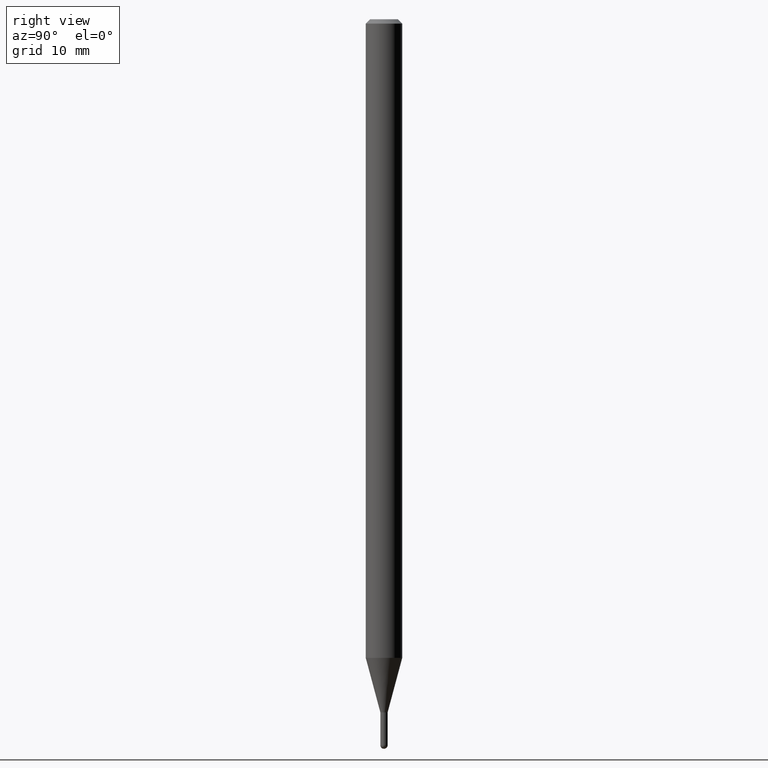
[diagram: clean part render]
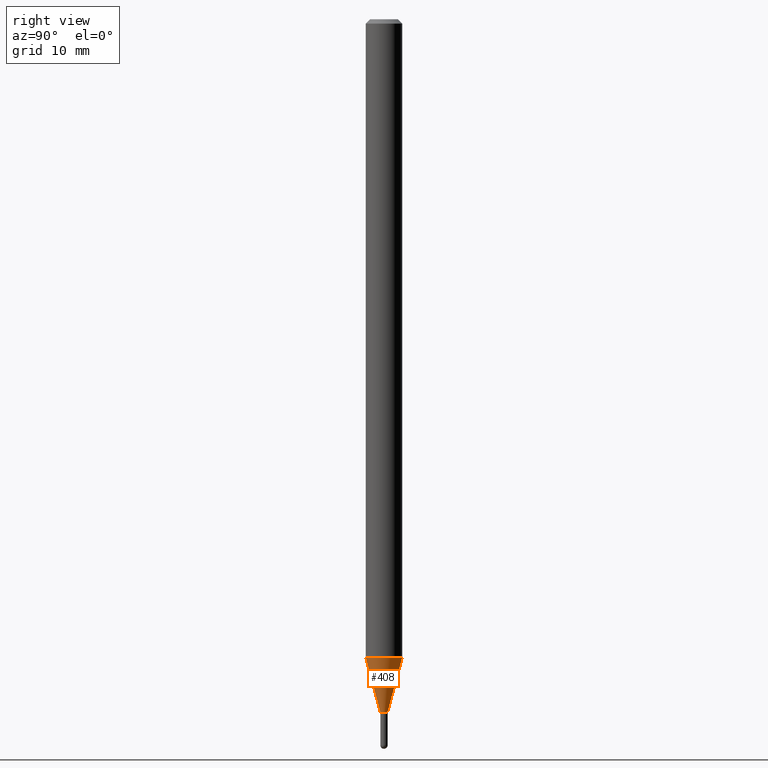
[diagram: same view with one face highlighted and labeled with its STEP entity id]
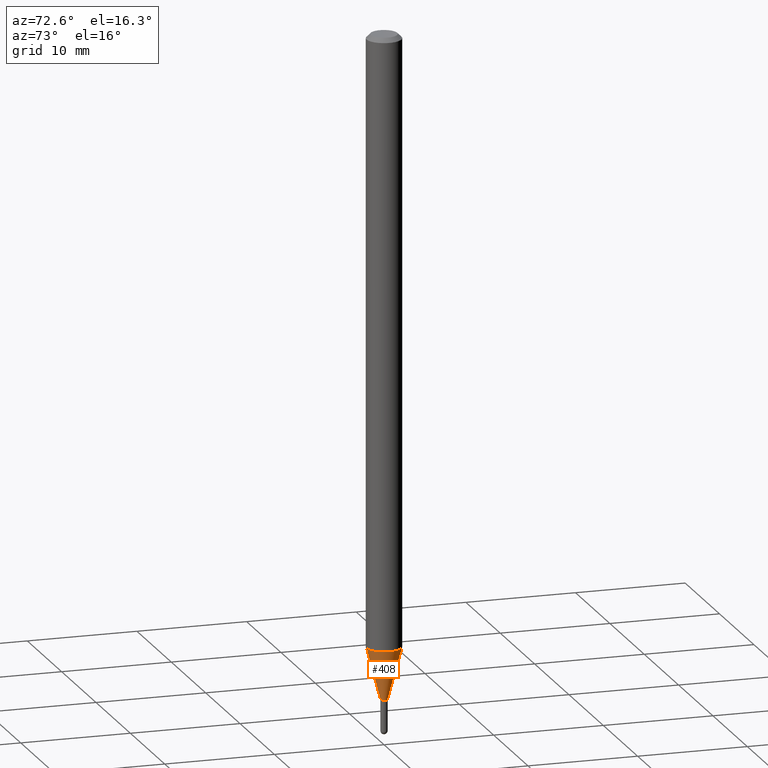
[diagram: same view with one face highlighted and labeled with its STEP entity id]
A machine part, right view. The second image highlights one B-rep face of the part: STEP entity #408.
A second angle (auxiliary view) of the same face is appended — the face is thin or edge-on in the first view.
In plain terms, the highlighted conical surface has half-angle 15 deg.
Its self-contained STEP definition (entity closure, byte-faithful):
#2 = CARTESIAN_POINT ( 'NONE',  ( 5.807806707134409202E-29, -8.292528395313797988E-15, -2.375000000000000000 ) ) ;
#6 = EDGE_LOOP ( 'NONE', ( #388, #9, #479, #171 ) ) ;
#9 = ORIENTED_EDGE ( 'NONE', *, *, #344, .T. ) ;
#12 = AXIS2_PLACEMENT_3D ( 'NONE', #385, #101, #259 ) ;
#15 = VECTOR ( 'NONE', #79, 39.37007874015748143 ) ;
#16 = EDGE_CURVE ( 'NONE', #435, #504, #341, .T. ) ;
#39 = EDGE_CURVE ( 'NONE', #486, #435, #337, .T. ) ;
#79 = DIRECTION ( 'NONE',  ( 1.839019923739652380E-15, 0.2588190451025322858, 0.9659258262890650926 ) ) ;
#84 = DIRECTION ( 'NONE',  ( -6.982962677686265922E-15, -1.000000000000000000, 0.000000000000000000 ) ) ;
#101 = DIRECTION ( 'NONE',  ( -2.445392297740803875E-29, 3.491590903290020371E-15, 1.000000000000000000 ) ) ;
#104 = CARTESIAN_POINT ( 'NONE',  ( -8.728703347101971166E-17, -0.01250000000000821634, -2.375000000000000000 ) ) ;
#129 = EDGE_CURVE ( 'NONE', #486, #510, #273, .T. ) ;
#168 = CARTESIAN_POINT ( 'NONE',  ( -4.364351673553382241E-16, -0.06250000000000764666, -2.188397459621561847 ) ) ;
#171 = ORIENTED_EDGE ( 'NONE', *, *, #39, .F. ) ;
#173 = AXIS2_PLACEMENT_3D ( 'NONE', #253, #227, #492 ) ;
#180 = CARTESIAN_POINT ( 'NONE',  ( 2.664535259100932238E-16, 0.01249999999999163412, -2.375000000000000000 ) ) ;
#182 = AXIS2_PLACEMENT_3D ( 'NONE', #2, #281, #84 ) ;
#190 = VECTOR ( 'NONE', #452, 39.37007874015748854 ) ;
#227 = DIRECTION ( 'NONE',  ( -2.445392297740803875E-29, 3.491590903290020371E-15, 1.000000000000000000 ) ) ;
#231 = LINE ( 'NONE', #391, #15 ) ;
#253 = CARTESIAN_POINT ( 'NONE',  ( 5.807806707134409202E-29, -8.292528395313797988E-15, -2.375000000000000000 ) ) ;
#259 = DIRECTION ( 'NONE',  ( -6.982962677686265922E-15, -1.000000000000000000, 4.370956789862821150E-15 ) ) ;
#261 = CONICAL_SURFACE ( 'NONE', #182, 0.01249999999999992437, 0.2617993877991578455 ) ;
#273 = CIRCLE ( 'NONE', #173, 0.01249999999999992437 ) ;
#281 = DIRECTION ( 'NONE',  ( -2.445392297740803875E-29, 3.491590903290020371E-15, 1.000000000000000000 ) ) ;
#337 = LINE ( 'NONE', #104, #190 ) ;
#341 = CIRCLE ( 'NONE', #12, 0.06250000000000000000 ) ;
#344 = EDGE_CURVE ( 'NONE', #510, #504, #231, .T. ) ;
#364 = CARTESIAN_POINT ( 'NONE',  ( -8.728703347101971166E-17, -0.01250000000000821634, -2.375000000000000000 ) ) ;
#385 = CARTESIAN_POINT ( 'NONE',  ( 5.351490292154110661E-29, -7.640988662797635035E-15, -2.188397459621562291 ) ) ;
#388 = ORIENTED_EDGE ( 'NONE', *, *, #129, .T. ) ;
#391 = CARTESIAN_POINT ( 'NONE',  ( 8.881784197007005338E-17, 0.01249999999999163239, -2.375000000000000000 ) ) ;
#408 = ADVANCED_FACE ( 'NONE', ( #478 ), #261, .T. ) ;
#435 = VERTEX_POINT ( 'NONE', #168 ) ;
#452 = DIRECTION ( 'NONE',  ( -1.807323732225381415E-15, -0.2588190451025255134, 0.9659258262890669799 ) ) ;
#478 = FACE_OUTER_BOUND ( 'NONE', #6, .T. ) ;
#479 = ORIENTED_EDGE ( 'NONE', *, *, #16, .F. ) ;
#486 = VERTEX_POINT ( 'NONE', #364 ) ;
#487 = CARTESIAN_POINT ( 'NONE',  ( 4.440892098501159629E-16, 0.06249999999999236028, -2.188397459621562735 ) ) ;
#492 = DIRECTION ( 'NONE',  ( -6.982962677686265922E-15, -1.000000000000000000, 0.000000000000000000 ) ) ;
#504 = VERTEX_POINT ( 'NONE', #487 ) ;
#510 = VERTEX_POINT ( 'NONE', #180 ) ;